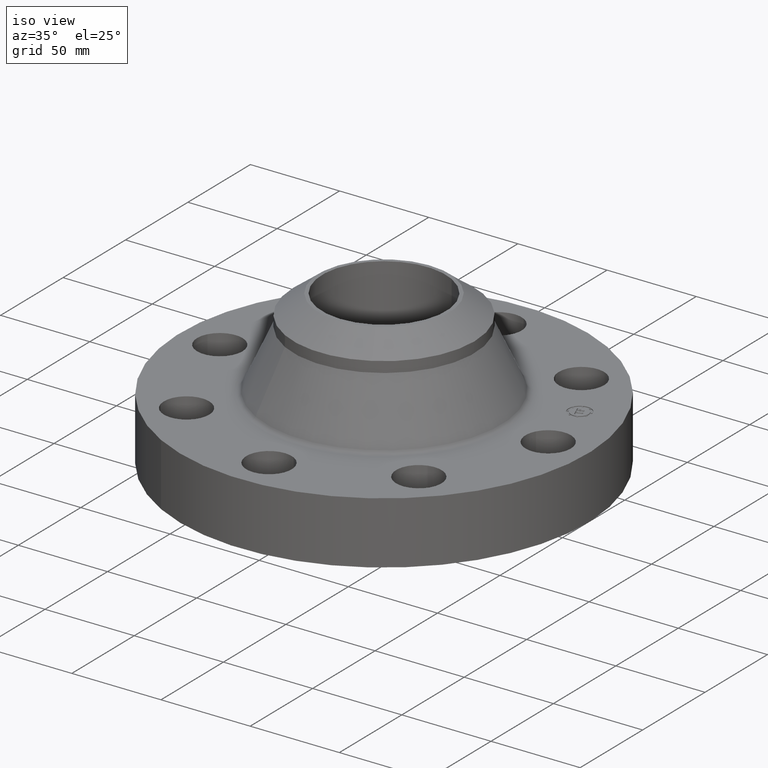
[diagram: clean part render]
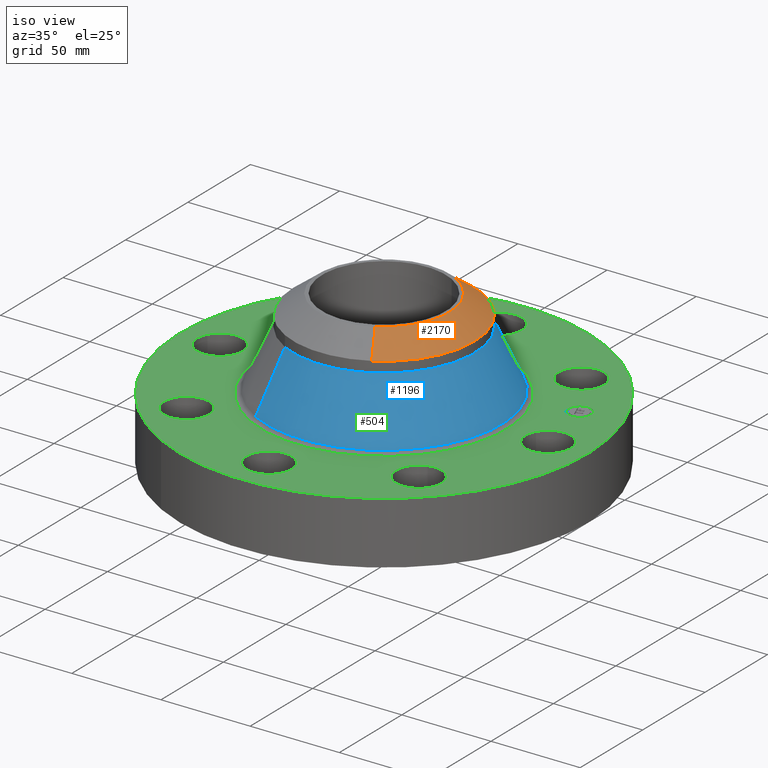
[diagram: same view with three faces highlighted in distinct colors, each labeled with its STEP entity id]
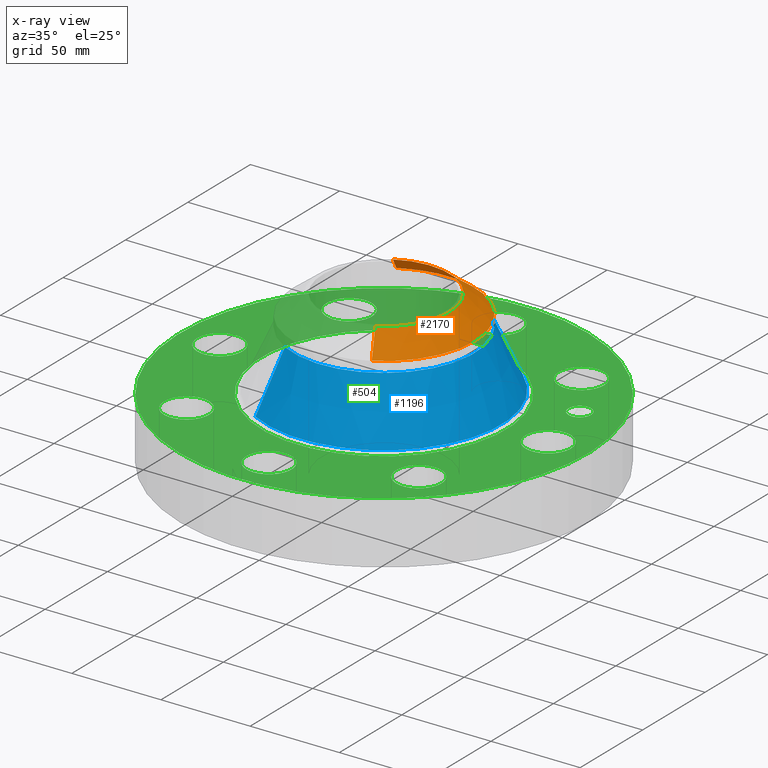
[diagram: x-ray of the same camera — body ghosted, the three highlighted faces saturated]
A machine part, iso view with three faces highlighted in distinct colors.
The next image is the same camera in x-ray (body ghosted, the three faces saturated) — at least one of them is partly hidden behind the body in this view.
Their STEP definitions:

[orange] entity #2170 — the highlighted conical surface has half-angle 52.5 deg.
#1485=AXIS2_PLACEMENT_3D('Circle Axis2P3D',#1483,#1484,$) ;
#1510=AXIS2_PLACEMENT_3D('Circle Axis2P3D',#1508,#1509,$) ;
#2100=AXIS2_PLACEMENT_3D('Circle Axis2P3D',#2098,#2099,$) ;
#2161=AXIS2_PLACEMENT_3D('Cone Axis2P3D',#2158,#2159,#2160) ;
#1466=CARTESIAN_POINT('Vertex',(0.958851077214,1.75516512379,2.95239948353)) ;
#1480=CARTESIAN_POINT('Vertex',(-0.958851077212,1.75516512379,2.95239948353)) ;
#1483=CARTESIAN_POINT('Axis2P3D Location',(0.,0.,2.95239948353)) ;
#1508=CARTESIAN_POINT('Axis2P3D Location',(0.,0.,2.95239948353)) ;
#1512=CARTESIAN_POINT('Vertex',(0.958851077212,-1.75516512379,2.95239948353)) ;
#2098=CARTESIAN_POINT('Axis2P3D Location',(0.,-1.93329167198E-011,3.38000000001)) ;
#2102=CARTESIAN_POINT('Vertex',(0.69168647707,-1.26612360355,3.38000000001)) ;
#2104=CARTESIAN_POINT('Vertex',(-0.691686477071,1.26612360355,3.38000000001)) ;
#2133=CARTESIAN_POINT('Line Origine',(0.825268777142,-1.51064436367,3.16619974177)) ;
#2138=CARTESIAN_POINT('Line Origine',(-0.825268777142,1.51064436367,3.16619974177)) ;
#2158=CARTESIAN_POINT('Axis2P3D Location',(0.,0.,3.38000000001)) ;
#1484=DIRECTION('Axis2P3D Direction',(-0.,0.,-0.0393700787402)) ;
#1509=DIRECTION('Axis2P3D Direction',(-0.,0.,-0.0393700787402)) ;
#2099=DIRECTION('Axis2P3D Direction',(0.,0.,-0.0393700787402)) ;
#2134=DIRECTION('Vector Direction',(0.014974561121,-0.02741075027,-0.023966985394)) ;
#2139=DIRECTION('Vector Direction',(-0.014974561121,0.02741075027,-0.023966985394)) ;
#2159=DIRECTION('Axis2P3D Direction',(-0.,-0.,-0.0393700787402)) ;
#2160=DIRECTION('Axis2P3D XDirection',(-0.0188750212049,0.0345504945626,0.)) ;
#2135=VECTOR('Line Direction',#2134,0.0393700787402) ;
#2140=VECTOR('Line Direction',#2139,0.0393700787402) ;
#2164=ORIENTED_EDGE('',*,*,#2142,.F.) ;
#2165=ORIENTED_EDGE('',*,*,#2106,.F.) ;
#2166=ORIENTED_EDGE('',*,*,#2137,.T.) ;
#2167=ORIENTED_EDGE('',*,*,#1514,.T.) ;
#2168=ORIENTED_EDGE('',*,*,#1487,.F.) ;
#2170=ADVANCED_FACE('PartBody',(#2169),#2162,.T.) ;
#1486=CIRCLE('generated circle',#1485,2.00000000001) ;
#1511=CIRCLE('generated circle',#1510,2.00000000001) ;
#2101=CIRCLE('generated circle',#2100,1.44274015748) ;
#2162=CONICAL_SURFACE('Cone',#2161,1.44274015749,0.916297857297) ;
#1487=EDGE_CURVE('',#1481,#1467,#1486,.T.) ;
#1514=EDGE_CURVE('',#1513,#1467,#1511,.F.) ;
#2106=EDGE_CURVE('',#2103,#2105,#2101,.F.) ;
#2137=EDGE_CURVE('',#2103,#1513,#2136,.T.) ;
#2142=EDGE_CURVE('',#2105,#1481,#2141,.T.) ;
#2163=EDGE_LOOP('',(#2164,#2165,#2166,#2167,#2168)) ;
#2169=FACE_OUTER_BOUND('',#2163,.T.) ;
#2136=LINE('Line',#2133,#2135) ;
#2141=LINE('Line',#2138,#2140) ;
#1467=VERTEX_POINT('',#1466) ;
#1481=VERTEX_POINT('',#1480) ;
#1513=VERTEX_POINT('',#1512) ;
#2103=VERTEX_POINT('',#2102) ;
#2105=VERTEX_POINT('',#2104) ;

[blue] entity #1196 — the highlighted conical surface has half-angle 25.068 deg.
#1015=AXIS2_PLACEMENT_3D('Circle Axis2P3D',#1013,#1014,$) ;
#1183=AXIS2_PLACEMENT_3D('Cone Axis2P3D',#1180,#1181,#1182) ;
#1187=AXIS2_PLACEMENT_3D('Circle Axis2P3D',#1185,#1186,$) ;
#979=CARTESIAN_POINT('Vertex',(-1.24298345448,-2.27526595171,1.44915691636)) ;
#986=CARTESIAN_POINT('Vertex',(1.24298345448,2.27526595171,1.44915691636)) ;
#1013=CARTESIAN_POINT('Axis2P3D Location',(0.,0.,1.44915691636)) ;
#1147=CARTESIAN_POINT('Line Origine',(-1.10091726585,-2.01521553775,2.08266796373)) ;
#1151=CARTESIAN_POINT('Vertex',(-0.958851077212,-1.75516512379,2.71617901109)) ;
#1158=CARTESIAN_POINT('Vertex',(0.958851077214,1.75516512379,2.71617901109)) ;
#1161=CARTESIAN_POINT('Line Origine',(1.10091726585,2.01521553775,2.08266796373)) ;
#1180=CARTESIAN_POINT('Axis2P3D Location',(0.,0.,2.71617901109)) ;
#1185=CARTESIAN_POINT('Axis2P3D Location',(0.,0.,2.71617901109)) ;
#1014=DIRECTION('Axis2P3D Direction',(-0.,0.,-0.0393700787402)) ;
#1148=DIRECTION('Vector Direction',(-0.00799720235001,-0.0146387807097,-0.0356616594386)) ;
#1162=DIRECTION('Vector Direction',(0.00799720235001,0.0146387807097,-0.0356616594386)) ;
#1181=DIRECTION('Axis2P3D Direction',(0.,0.,-0.0393700787402)) ;
#1182=DIRECTION('Axis2P3D XDirection',(0.0188750212049,0.0345504945626,0.)) ;
#1186=DIRECTION('Axis2P3D Direction',(-0.,0.,-0.0393700787402)) ;
#1149=VECTOR('Line Direction',#1148,0.0393700787402) ;
#1163=VECTOR('Line Direction',#1162,0.0393700787402) ;
#1191=ORIENTED_EDGE('',*,*,#1017,.F.) ;
#1192=ORIENTED_EDGE('',*,*,#1165,.T.) ;
#1193=ORIENTED_EDGE('',*,*,#1189,.T.) ;
#1194=ORIENTED_EDGE('',*,*,#1153,.F.) ;
#1196=ADVANCED_FACE('PartBody',(#1195),#1184,.T.) ;
#1016=CIRCLE('generated circle',#1015,2.59265173502) ;
#1188=CIRCLE('generated circle',#1187,2.00000000001) ;
#1184=CONICAL_SURFACE('Cone',#1183,2.00000000001,0.437517781368) ;
#1017=EDGE_CURVE('',#987,#980,#1016,.T.) ;
#1153=EDGE_CURVE('',#980,#1152,#1150,.F.) ;
#1165=EDGE_CURVE('',#987,#1159,#1164,.F.) ;
#1189=EDGE_CURVE('',#1159,#1152,#1188,.T.) ;
#1190=EDGE_LOOP('',(#1191,#1192,#1193,#1194)) ;
#1195=FACE_OUTER_BOUND('',#1190,.T.) ;
#1150=LINE('Line',#1147,#1149) ;
#1164=LINE('Line',#1161,#1163) ;
#980=VERTEX_POINT('',#979) ;
#987=VERTEX_POINT('',#986) ;
#1152=VERTEX_POINT('',#1151) ;
#1159=VERTEX_POINT('',#1158) ;

[green] entity #504 — the highlighted planar face has unit normal (0, 0, -1).
#65=AXIS2_PLACEMENT_3D('Circle Axis2P3D',#63,#64,$) ;
#318=AXIS2_PLACEMENT_3D('Plane Axis2P3D',#315,#316,#317) ;
#322=AXIS2_PLACEMENT_3D('Circle Axis2P3D',#320,#321,$) ;
#331=AXIS2_PLACEMENT_3D('Circle Axis2P3D',#329,#330,$) ;
#344=AXIS2_PLACEMENT_3D('Circle Axis2P3D',#342,#343,$) ;
#353=AXIS2_PLACEMENT_3D('Circle Axis2P3D',#351,#352,$) ;
#362=AXIS2_PLACEMENT_3D('Circle Axis2P3D',#360,#361,$) ;
#371=AXIS2_PLACEMENT_3D('Circle Axis2P3D',#369,#370,$) ;
#380=AXIS2_PLACEMENT_3D('Circle Axis2P3D',#378,#379,$) ;
#389=AXIS2_PLACEMENT_3D('Circle Axis2P3D',#387,#388,$) ;
#398=AXIS2_PLACEMENT_3D('Circle Axis2P3D',#396,#397,$) ;
#407=AXIS2_PLACEMENT_3D('Circle Axis2P3D',#405,#406,$) ;
#416=AXIS2_PLACEMENT_3D('Circle Axis2P3D',#414,#415,$) ;
#425=AXIS2_PLACEMENT_3D('Circle Axis2P3D',#423,#424,$) ;
#434=AXIS2_PLACEMENT_3D('Circle Axis2P3D',#432,#433,$) ;
#443=AXIS2_PLACEMENT_3D('Circle Axis2P3D',#441,#442,$) ;
#452=AXIS2_PLACEMENT_3D('Circle Axis2P3D',#450,#451,$) ;
#461=AXIS2_PLACEMENT_3D('Circle Axis2P3D',#459,#460,$) ;
#470=AXIS2_PLACEMENT_3D('Circle Axis2P3D',#468,#469,$) ;
#479=AXIS2_PLACEMENT_3D('Circle Axis2P3D',#477,#478,$) ;
#488=AXIS2_PLACEMENT_3D('Circle Axis2P3D',#486,#487,$) ;
#497=AXIS2_PLACEMENT_3D('Circle Axis2P3D',#495,#496,$) ;
#46=CARTESIAN_POINT('Vertex',(3.18620871906,0.239712769303,1.37999999999)) ;
#60=CARTESIAN_POINT('Vertex',(4.06379128096,-0.239712769302,1.37999999999)) ;
#63=CARTESIAN_POINT('Axis2P3D Location',(3.62500000001,0.,1.37999999999)) ;
#106=CARTESIAN_POINT('Control Point',(4.06379128096,-0.239712769302,1.37999999999)) ;
#107=CARTESIAN_POINT('Control Point',(4.02613728721,-0.308637942536,1.37999999999)) ;
#108=CARTESIAN_POINT('Control Point',(3.97494986734,-0.370169771386,1.37999999999)) ;
#109=CARTESIAN_POINT('Control Point',(3.91215377557,-0.420753227527,1.37999999999)) ;
#110=CARTESIAN_POINT('Control Point',(3.77011145901,-0.494572276324,1.37999999999)) ;
#111=CARTESIAN_POINT('Control Point',(3.61070236874,-0.509201479801,1.38)) ;
#112=CARTESIAN_POINT('Control Point',(3.53053092156,-0.500565842331,1.38)) ;
#113=CARTESIAN_POINT('Control Point',(3.37789388632,-0.452324707065,1.38)) ;
#114=CARTESIAN_POINT('Control Point',(3.25483022862,-0.349949867328,1.38)) ;
#115=CARTESIAN_POINT('Control Point',(3.20424677248,-0.287153775558,1.38)) ;
#116=CARTESIAN_POINT('Control Point',(3.13042772369,-0.145111459003,1.38)) ;
#117=CARTESIAN_POINT('Control Point',(3.11579852021,0.0142976312751,1.38000000001)) ;
#118=CARTESIAN_POINT('Control Point',(3.12443415768,0.0944690784508,1.38000000001)) ;
#119=CARTESIAN_POINT('Control Point',(3.14855472531,0.170787596069,1.38000000001)) ;
#120=CARTESIAN_POINT('Control Point',(3.18620871906,0.239712769303,1.38000000001)) ;
#315=CARTESIAN_POINT('Axis2P3D Location',(0.,4.50000000002,1.38000000001)) ;
#320=CARTESIAN_POINT('Axis2P3D Location',(1.1189649382E-015,-9.33216758463E-012,1.38000000001)) ;
#324=CARTESIAN_POINT('Vertex',(2.15741492373,3.94912152852,1.38000000005)) ;
#326=CARTESIAN_POINT('Vertex',(-2.15741492373,-3.94912152852,1.38000000005)) ;
#329=CARTESIAN_POINT('Axis2P3D Location',(-1.1189649382E-015,-9.33328654957E-012,1.38000000001)) ;
#342=CARTESIAN_POINT('Axis2P3D Location',(2.79741234551E-016,-9.3327270671E-012,1.38000000001)) ;
#346=CARTESIAN_POINT('Vertex',(-1.29509544662,-2.37065631349,1.38000000001)) ;
#348=CARTESIAN_POINT('Vertex',(1.29509544662,2.37065631349,1.38000000001)) ;
#351=CARTESIAN_POINT('Axis2P3D Location',(-2.79741234551E-016,-9.3327270671E-012,1.38000000001)) ;
#360=CARTESIAN_POINT('Axis2P3D Location',(2.56326208183,-2.56326208177,1.38000000001)) ;
#364=CARTESIAN_POINT('Vertex',(2.70403184738,-3.0430368968,1.37999999999)) ;
#366=CARTESIAN_POINT('Vertex',(2.42249231624,-2.08348726682,1.37999999999)) ;
#369=CARTESIAN_POINT('Axis2P3D Location',(2.56326208183,-2.56326208177,1.38000000001)) ;
#378=CARTESIAN_POINT('Axis2P3D Location',(-4.36655785895E-011,-3.62499999999,1.38000000001)) ;
#382=CARTESIAN_POINT('Vertex',(-0.239712769302,-4.06379128096,1.37999999999)) ;
#384=CARTESIAN_POINT('Vertex',(0.239712769303,-3.18620871906,1.37999999999)) ;
#387=CARTESIAN_POINT('Axis2P3D Location',(1.28116589953E-011,-3.62500000002,1.38000000001)) ;
#396=CARTESIAN_POINT('Axis2P3D Location',(-2.56326208185,-2.56326208179,1.38000000001)) ;
#400=CARTESIAN_POINT('Vertex',(-3.0430368968,-2.70403184738,1.37999999999)) ;
#402=CARTESIAN_POINT('Vertex',(-2.08348726682,-2.42249231624,1.37999999999)) ;
#405=CARTESIAN_POINT('Axis2P3D Location',(-2.56326208185,-2.56326208179,1.38000000001)) ;
#414=CARTESIAN_POINT('Axis2P3D Location',(-3.62499999998,3.43326417165E-011,1.38000000001)) ;
#418=CARTESIAN_POINT('Vertex',(-4.06379128096,0.239712769302,1.37999999999)) ;
#420=CARTESIAN_POINT('Vertex',(-3.18620871906,-0.239712769303,1.37999999999)) ;
#423=CARTESIAN_POINT('Axis2P3D Location',(-3.625,3.47886199288E-012,1.38000000001)) ;
#432=CARTESIAN_POINT('Axis2P3D Location',(-2.56326208185,2.56326208182,1.38000000001)) ;
#436=CARTESIAN_POINT('Vertex',(-2.70403184738,3.0430368968,1.37999999999)) ;
#438=CARTESIAN_POINT('Vertex',(-2.42249231624,2.08348726682,1.37999999999)) ;
#441=CARTESIAN_POINT('Axis2P3D Location',(-2.56326208185,2.56326208182,1.38000000001)) ;
#450=CARTESIAN_POINT('Axis2P3D Location',(1.28116589953E-011,3.62499999999,1.38000000001)) ;
#454=CARTESIAN_POINT('Vertex',(0.239712769302,4.06379128096,1.37999999999)) ;
#456=CARTESIAN_POINT('Vertex',(-0.239712769303,3.18620871906,1.37999999999)) ;
#459=CARTESIAN_POINT('Axis2P3D Location',(-4.36655785895E-011,3.62500000002,1.38000000001)) ;
#468=CARTESIAN_POINT('Axis2P3D Location',(2.56326208183,2.56326208184,1.38000000001)) ;
#472=CARTESIAN_POINT('Vertex',(3.0430368968,2.70403184738,1.37999999999)) ;
#474=CARTESIAN_POINT('Vertex',(2.08348726682,2.42249231624,1.37999999999)) ;
#477=CARTESIAN_POINT('Axis2P3D Location',(2.56326208183,2.56326208184,1.38000000001)) ;
#486=CARTESIAN_POINT('Axis2P3D Location',(3.34906330537,1.38722744234,1.38000000001)) ;
#490=CARTESIAN_POINT('Vertex',(3.25434915589,1.61588762666,1.38000000001)) ;
#492=CARTESIAN_POINT('Vertex',(3.44377745486,1.15856725802,1.38000000001)) ;
#495=CARTESIAN_POINT('Axis2P3D Location',(3.34906330535,1.38722744233,1.38000000001)) ;
#64=DIRECTION('Axis2P3D Direction',(0.,-0.,-0.0393700787402)) ;
#316=DIRECTION('Axis2P3D Direction',(0.,0.,-0.0393700787402)) ;
#317=DIRECTION('Axis2P3D XDirection',(0.0393700787402,0.,0.)) ;
#321=DIRECTION('Axis2P3D Direction',(0.,0.,-0.0393700787402)) ;
#330=DIRECTION('Axis2P3D Direction',(0.,0.,-0.0393700787402)) ;
#343=DIRECTION('Axis2P3D Direction',(0.,0.,-0.0393700787402)) ;
#352=DIRECTION('Axis2P3D Direction',(0.,0.,-0.0393700787402)) ;
#361=DIRECTION('Axis2P3D Direction',(0.,0.,-0.0393700787402)) ;
#370=DIRECTION('Axis2P3D Direction',(0.,0.,-0.0393700787402)) ;
#379=DIRECTION('Axis2P3D Direction',(0.,0.,-0.0393700787402)) ;
#388=DIRECTION('Axis2P3D Direction',(0.,0.,-0.0393700787402)) ;
#397=DIRECTION('Axis2P3D Direction',(0.,0.,-0.0393700787402)) ;
#406=DIRECTION('Axis2P3D Direction',(0.,0.,-0.0393700787402)) ;
#415=DIRECTION('Axis2P3D Direction',(0.,0.,-0.0393700787402)) ;
#424=DIRECTION('Axis2P3D Direction',(0.,0.,-0.0393700787402)) ;
#433=DIRECTION('Axis2P3D Direction',(0.,0.,-0.0393700787402)) ;
#442=DIRECTION('Axis2P3D Direction',(0.,0.,-0.0393700787402)) ;
#451=DIRECTION('Axis2P3D Direction',(0.,0.,-0.0393700787402)) ;
#460=DIRECTION('Axis2P3D Direction',(0.,0.,-0.0393700787402)) ;
#469=DIRECTION('Axis2P3D Direction',(0.,0.,-0.0393700787402)) ;
#478=DIRECTION('Axis2P3D Direction',(0.,0.,-0.0393700787402)) ;
#487=DIRECTION('Axis2P3D Direction',(0.,0.,-0.0393700787402)) ;
#496=DIRECTION('Axis2P3D Direction',(0.,0.,-0.0393700787402)) ;
#335=ORIENTED_EDGE('',*,*,#328,.F.) ;
#336=ORIENTED_EDGE('',*,*,#333,.F.) ;
#339=ORIENTED_EDGE('',*,*,#67,.T.) ;
#340=ORIENTED_EDGE('',*,*,#121,.T.) ;
#357=ORIENTED_EDGE('',*,*,#350,.T.) ;
#358=ORIENTED_EDGE('',*,*,#355,.T.) ;
#375=ORIENTED_EDGE('',*,*,#368,.T.) ;
#376=ORIENTED_EDGE('',*,*,#373,.T.) ;
#393=ORIENTED_EDGE('',*,*,#386,.T.) ;
#394=ORIENTED_EDGE('',*,*,#391,.T.) ;
#411=ORIENTED_EDGE('',*,*,#404,.T.) ;
#412=ORIENTED_EDGE('',*,*,#409,.T.) ;
#429=ORIENTED_EDGE('',*,*,#422,.T.) ;
#430=ORIENTED_EDGE('',*,*,#427,.T.) ;
#447=ORIENTED_EDGE('',*,*,#440,.T.) ;
#448=ORIENTED_EDGE('',*,*,#445,.T.) ;
#465=ORIENTED_EDGE('',*,*,#458,.T.) ;
#466=ORIENTED_EDGE('',*,*,#463,.T.) ;
#483=ORIENTED_EDGE('',*,*,#476,.T.) ;
#484=ORIENTED_EDGE('',*,*,#481,.T.) ;
#501=ORIENTED_EDGE('',*,*,#494,.T.) ;
#502=ORIENTED_EDGE('',*,*,#499,.T.) ;
#341=FACE_BOUND('',#338,.T.) ;
#359=FACE_BOUND('',#356,.T.) ;
#377=FACE_BOUND('',#374,.T.) ;
#395=FACE_BOUND('',#392,.T.) ;
#413=FACE_BOUND('',#410,.T.) ;
#431=FACE_BOUND('',#428,.T.) ;
#449=FACE_BOUND('',#446,.T.) ;
#467=FACE_BOUND('',#464,.T.) ;
#485=FACE_BOUND('',#482,.T.) ;
#503=FACE_BOUND('',#500,.T.) ;
#504=ADVANCED_FACE('PartBody',(#337,#341,#359,#377,#395,#413,#431,#449,#467,#485,#503),#319,.F.) ;
#105=B_SPLINE_CURVE_WITH_KNOTS('',5,(#106,#107,#108,#109,#110,#111,#112,#113,#114,#115,#116,#117,#118,#119,#120),.UNSPECIFIED.,.F.,.U.,(6,3,3,3,6),(-19.9491133504,-9.9745566752,1.7763568394E-015,9.9745566752,19.9491133504),.UNSPECIFIED.) ;
#66=CIRCLE('generated circle',#65,0.500000000002) ;
#323=CIRCLE('generated circle',#322,4.50000000003) ;
#332=CIRCLE('generated circle',#331,4.50000000003) ;
#345=CIRCLE('generated circle',#344,2.70134847296) ;
#354=CIRCLE('generated circle',#353,2.70134847296) ;
#363=CIRCLE('generated circle',#362,0.5) ;
#372=CIRCLE('generated circle',#371,0.5) ;
#381=CIRCLE('generated circle',#380,0.499999999995) ;
#390=CIRCLE('generated circle',#389,0.499999999995) ;
#399=CIRCLE('generated circle',#398,0.5) ;
#408=CIRCLE('generated circle',#407,0.5) ;
#417=CIRCLE('generated circle',#416,0.499999999995) ;
#426=CIRCLE('generated circle',#425,0.499999999995) ;
#435=CIRCLE('generated circle',#434,0.5) ;
#444=CIRCLE('generated circle',#443,0.5) ;
#453=CIRCLE('generated circle',#452,0.499999999995) ;
#462=CIRCLE('generated circle',#461,0.499999999995) ;
#471=CIRCLE('generated circle',#470,0.5) ;
#480=CIRCLE('generated circle',#479,0.5) ;
#489=CIRCLE('generated circle',#488,0.247500000009) ;
#498=CIRCLE('generated circle',#497,0.247500000009) ;
#67=EDGE_CURVE('',#47,#61,#66,.T.) ;
#121=EDGE_CURVE('',#61,#47,#105,.T.) ;
#328=EDGE_CURVE('',#325,#327,#323,.T.) ;
#333=EDGE_CURVE('',#327,#325,#332,.T.) ;
#350=EDGE_CURVE('',#347,#349,#345,.T.) ;
#355=EDGE_CURVE('',#349,#347,#354,.T.) ;
#368=EDGE_CURVE('',#365,#367,#363,.T.) ;
#373=EDGE_CURVE('',#367,#365,#372,.T.) ;
#386=EDGE_CURVE('',#383,#385,#381,.T.) ;
#391=EDGE_CURVE('',#385,#383,#390,.T.) ;
#404=EDGE_CURVE('',#401,#403,#399,.T.) ;
#409=EDGE_CURVE('',#403,#401,#408,.T.) ;
#422=EDGE_CURVE('',#419,#421,#417,.T.) ;
#427=EDGE_CURVE('',#421,#419,#426,.T.) ;
#440=EDGE_CURVE('',#437,#439,#435,.T.) ;
#445=EDGE_CURVE('',#439,#437,#444,.T.) ;
#458=EDGE_CURVE('',#455,#457,#453,.T.) ;
#463=EDGE_CURVE('',#457,#455,#462,.T.) ;
#476=EDGE_CURVE('',#473,#475,#471,.T.) ;
#481=EDGE_CURVE('',#475,#473,#480,.T.) ;
#494=EDGE_CURVE('',#491,#493,#489,.T.) ;
#499=EDGE_CURVE('',#493,#491,#498,.T.) ;
#334=EDGE_LOOP('',(#335,#336)) ;
#338=EDGE_LOOP('',(#339,#340)) ;
#356=EDGE_LOOP('',(#357,#358)) ;
#374=EDGE_LOOP('',(#375,#376)) ;
#392=EDGE_LOOP('',(#393,#394)) ;
#410=EDGE_LOOP('',(#411,#412)) ;
#428=EDGE_LOOP('',(#429,#430)) ;
#446=EDGE_LOOP('',(#447,#448)) ;
#464=EDGE_LOOP('',(#465,#466)) ;
#482=EDGE_LOOP('',(#483,#484)) ;
#500=EDGE_LOOP('',(#501,#502)) ;
#337=FACE_OUTER_BOUND('',#334,.T.) ;
#319=PLANE('',#318) ;
#47=VERTEX_POINT('',#46) ;
#61=VERTEX_POINT('',#60) ;
#325=VERTEX_POINT('',#324) ;
#327=VERTEX_POINT('',#326) ;
#347=VERTEX_POINT('',#346) ;
#349=VERTEX_POINT('',#348) ;
#365=VERTEX_POINT('',#364) ;
#367=VERTEX_POINT('',#366) ;
#383=VERTEX_POINT('',#382) ;
#385=VERTEX_POINT('',#384) ;
#401=VERTEX_POINT('',#400) ;
#403=VERTEX_POINT('',#402) ;
#419=VERTEX_POINT('',#418) ;
#421=VERTEX_POINT('',#420) ;
#437=VERTEX_POINT('',#436) ;
#439=VERTEX_POINT('',#438) ;
#455=VERTEX_POINT('',#454) ;
#457=VERTEX_POINT('',#456) ;
#473=VERTEX_POINT('',#472) ;
#475=VERTEX_POINT('',#474) ;
#491=VERTEX_POINT('',#490) ;
#493=VERTEX_POINT('',#492) ;